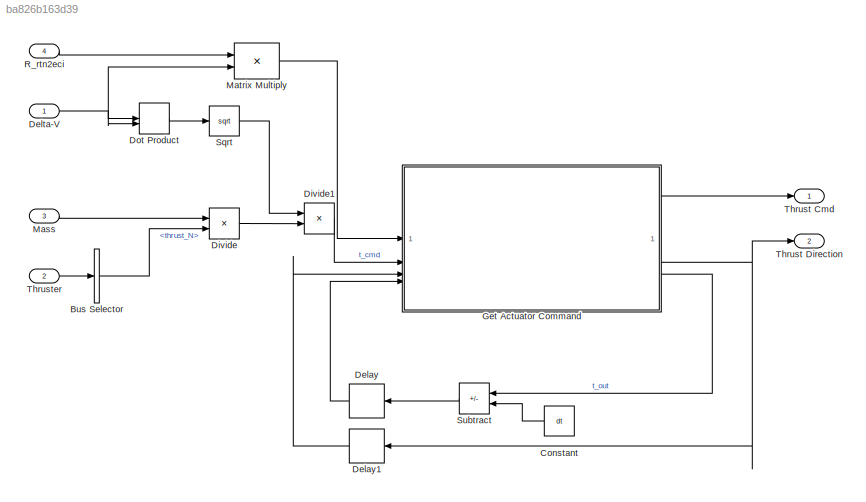
MODEL slx_ba826b163d39
KIND model
CONFIG AbsTol = auto
CONFIG EnableMultiTasking = off
CONFIG FixedStep = dt
CONFIG MaxStep = auto
CONFIG MinStep = auto
CONFIG RelTol = 1e-3
CONFIG SampleTimeConstraint = Unconstrained
CONFIG SolverName = ode4
CONFIG StartTime = 0.0
CONFIG StopTime = 10.0
BLOCK [BusSelector] Bus Selector
  OutputSignals = thrust_N
BLOCK [Constant] Constant
  Value = dt
BLOCK [Delay] Delay
  DelayLength = 1
  InputPortMap = u0
BLOCK [Delay] Delay1
  DelayLength = 1
  InitialCondition = [0,0,0]
  InputPortMap = u0
BLOCK [Inport] Delta-V
  PortDimensions = 3
  VarSizeSig = No
BLOCK [Product] Divide
  Inputs = /*
BLOCK [Product] Divide1
  Inputs = */
BLOCK [DotProduct] Dot Product
  InputSameDT = off
  OutDataTypeStr = Inherit: Inherit via internal rule
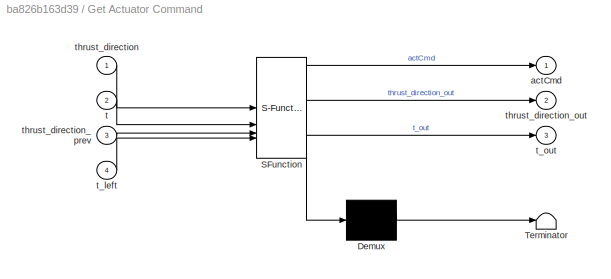
BLOCK [SubSystem] Get Actuator Command
  ErrorFcn = Stateflow.Translate.translate
  LibrarySourceBlock = simulink/User-Defined\nFunctions/MATLAB Function
  PermitHierarchicalResolution = ExplicitOnly
  SFBlockType = MATLAB Function
  TreatAsAtomicUnit = on
BLOCK [Demux] Get Actuator Command/ Demux 
  Outputs = 1
BLOCK [S-Function] Get Actuator Command/ SFunction 
  EnableBusSupport = on
  FunctionName = sf_sfun
  PortCounts = [4 4]
  SFcnIsStateOwnerBlock = off
  SFunctionDeploymentMode = off
  Tag = Stateflow S-Function 2
BLOCK [Terminator] Get Actuator Command/ Terminator 
BLOCK [Outport] Get Actuator Command/actCmd
BLOCK [Inport] Get Actuator Command/t
  Port = 2
BLOCK [Inport] Get Actuator Command/t_left
  Port = 4
BLOCK [Outport] Get Actuator Command/t_out
  Port = 3
BLOCK [Inport] Get Actuator Command/thrust_direction
BLOCK [Outport] Get Actuator Command/thrust_direction_out
  Port = 2
BLOCK [Inport] Get Actuator Command/thrust_direction_prev
  Port = 3
BLOCK [Inport] Mass
  Port = 3
BLOCK [Product] Matrix Multiply
  Multiplication = Matrix(*)
BLOCK [Inport] R_rtn2eci
  Port = 4
BLOCK [Sqrt] Sqrt
BLOCK [Sum] Subtract
  IconShape = rectangular
  Inputs = +-
BLOCK [Outport] Thrust Cmd
BLOCK [Outport] Thrust Direction
  Port = 2
  PortDimensions = 3
  VarSizeSig = No
BLOCK [Inport] Thruster
  OutDataTypeStr = Bus: thruster
  Port = 2
LINE Bus Selector:1 -> Divide:2
LINE Constant:1 -> Subtract:2
LINE Delay1:1 -> Get Actuator Command:3
LINE Delay:1 -> Get Actuator Command:4
NET Delta-V:1 -> Dot Product:1, Dot Product:2, Matrix Multiply:2
LINE Divide1:1 -> Get Actuator Command:2
LINE Divide:1 -> Divide1:2
LINE Dot Product:1 -> Sqrt:1
LINE Get Actuator Command:1 -> Thrust Cmd:1
NET Get Actuator Command:2 -> Delay1:1, Thrust Direction:1
LINE Get Actuator Command:3 -> Subtract:1
LINE Mass:1 -> Divide:1
LINE Matrix Multiply:1 -> Get Actuator Command:1
LINE R_rtn2eci:1 -> Matrix Multiply:1
LINE Sqrt:1 -> Divide1:1
LINE Subtract:1 -> Delay:1
LINE Thruster:1 -> Bus Selector:1
note: NET lines group one-source signal fan-out (src -> all destinations, sorted); 1:1 wires keep LINE
CHART Get Actuator Command states=1 transitions=1
  STATE_LABEL 'eML_blk_kernel()'
  STATE_LABEL 'SCRIPT:\nfunction [actCmd,thrust_direction_out,t_out] = getActCmd(thrust_direction, t, thrust_direction_prev, t_left)\n\n[actCmd,thrust_direction_out,t_out] = getActCmd(t, t_left, thrust_direction, thrust_direction_prev);\n\n\nend\n\n'
CHART  states=0 transitions=0
